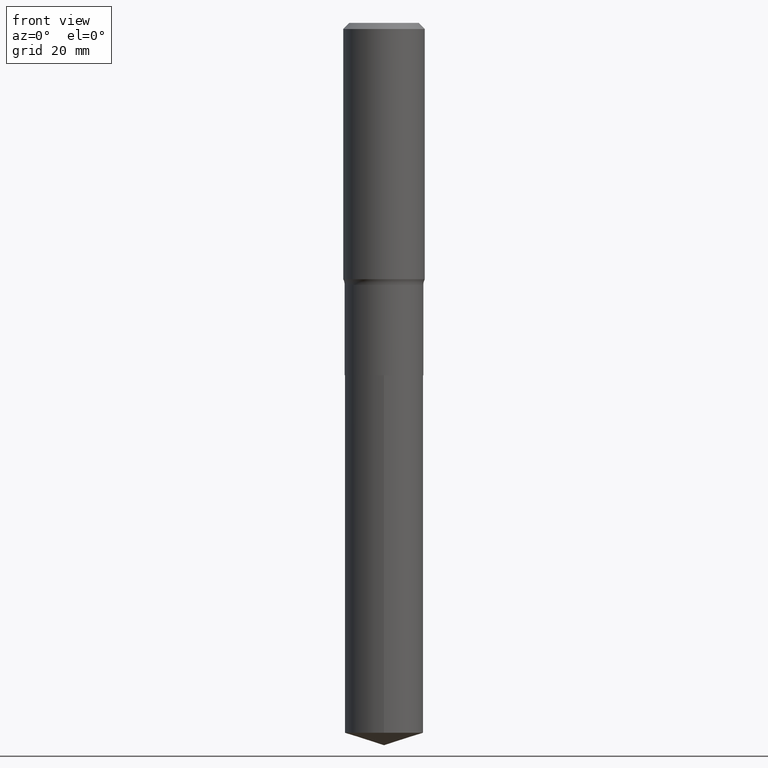
[diagram: clean part render]
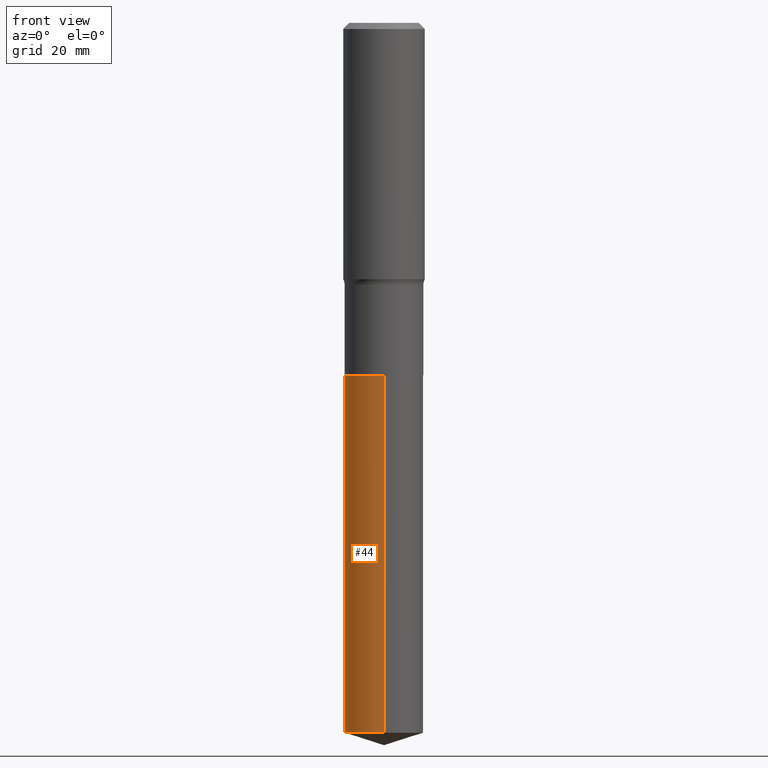
[diagram: same view with one face highlighted and labeled with its STEP entity id]
A machine part, front view. The second image highlights one B-rep face of the part: STEP entity #44.
In plain terms, the highlighted cylindrical surface (partial cylindrical patch) has radius 6.75 mm, axis along (-0, 0, 1).
Its self-contained STEP definition (entity closure, byte-faithful):
#1 = EDGE_CURVE ( 'NONE', #421, #33, #147, .T. ) ;
#3 = CARTESIAN_POINT ( 'NONE',  ( 5.824862149452375369E-29, -8.316359400990487656E-15, -2.381899999999999462 ) ) ;
#5 = CARTESIAN_POINT ( 'NONE',  ( 1.173308198626494863E-28, -1.675328935947353853E-14, -4.798109346855410351 ) ) ;
#7 = CYLINDRICAL_SURFACE ( 'NONE', #30, 0.2657499999999999862 ) ;
#30 = AXIS2_PLACEMENT_3D ( 'NONE', #3, #303, #158 ) ;
#33 = VERTEX_POINT ( 'NONE', #41 ) ;
#41 = CARTESIAN_POINT ( 'NONE',  ( -1.855722331595008201E-15, -0.2657500000000168061, -4.798109346855409463 ) ) ;
#44 = ADVANCED_FACE ( 'NONE', ( #84 ), #7, .T. ) ;
#47 = DIRECTION ( 'NONE',  ( -2.445243349671607734E-29, 3.491804205402707273E-15, 1.000000000000000000 ) ) ;
#60 = LINE ( 'NONE', #318, #193 ) ;
#74 = VERTEX_POINT ( 'NONE', #163 ) ;
#79 = VERTEX_POINT ( 'NONE', #430 ) ;
#84 = FACE_OUTER_BOUND ( 'NONE', #407, .T. ) ;
#107 = AXIS2_PLACEMENT_3D ( 'NONE', #5, #340, #492 ) ;
#138 = LINE ( 'NONE', #287, #280 ) ;
#147 = CIRCLE ( 'NONE', #107, 0.2657499999999999862 ) ;
#151 = ORIENTED_EDGE ( 'NONE', *, *, #328, .F. ) ;
#158 = DIRECTION ( 'NONE',  ( -6.982962677686266711E-15, -1.000000000000000000, 3.083930002255048040E-15 ) ) ;
#160 = EDGE_CURVE ( 'NONE', #33, #79, #60, .T. ) ;
#163 = CARTESIAN_POINT ( 'NONE',  ( 1.888267320282583686E-15, 0.2657499999999916596, -2.381900000000000350 ) ) ;
#169 = CIRCLE ( 'NONE', #468, 0.2657499999999999862 ) ;
#191 = ORIENTED_EDGE ( 'NONE', *, *, #395, .F. ) ;
#193 = VECTOR ( 'NONE', #47, 39.37007874015748143 ) ;
#220 = DIRECTION ( 'NONE',  ( -2.445243349671607734E-29, 3.491804205402706878E-15, 1.000000000000000000 ) ) ;
#257 = DIRECTION ( 'NONE',  ( -6.982962677686266711E-15, -1.000000000000000000, 3.083930002255048040E-15 ) ) ;
#262 = CARTESIAN_POINT ( 'NONE',  ( 1.888267320282583686E-15, 0.2657499999999832774, -4.798109346855411239 ) ) ;
#280 = VECTOR ( 'NONE', #483, 39.37007874015748143 ) ;
#287 = CARTESIAN_POINT ( 'NONE',  ( 1.888267320282524127E-15, 0.2657499999999916596, -2.381900000000000350 ) ) ;
#303 = DIRECTION ( 'NONE',  ( -2.445243349671607734E-29, 3.491804205402706878E-15, 1.000000000000000000 ) ) ;
#318 = CARTESIAN_POINT ( 'NONE',  ( -1.855722331595066971E-15, -0.2657500000000083129, -2.381899999999998574 ) ) ;
#328 = EDGE_CURVE ( 'NONE', #74, #79, #169, .T. ) ;
#335 = ORIENTED_EDGE ( 'NONE', *, *, #1, .T. ) ;
#340 = DIRECTION ( 'NONE',  ( -2.445243349671607734E-29, 3.491804205402706878E-15, 1.000000000000000000 ) ) ;
#342 = ORIENTED_EDGE ( 'NONE', *, *, #160, .T. ) ;
#360 = CARTESIAN_POINT ( 'NONE',  ( 5.824862149452375369E-29, -8.316359400990487656E-15, -2.381899999999999462 ) ) ;
#395 = EDGE_CURVE ( 'NONE', #421, #74, #138, .T. ) ;
#407 = EDGE_LOOP ( 'NONE', ( #191, #335, #342, #151 ) ) ;
#421 = VERTEX_POINT ( 'NONE', #262 ) ;
#430 = CARTESIAN_POINT ( 'NONE',  ( -1.855722331595066971E-15, -0.2657500000000083129, -2.381899999999998574 ) ) ;
#468 = AXIS2_PLACEMENT_3D ( 'NONE', #360, #220, #257 ) ;
#483 = DIRECTION ( 'NONE',  ( -2.445243349671607734E-29, 3.491804205402707273E-15, 1.000000000000000000 ) ) ;
#492 = DIRECTION ( 'NONE',  ( -6.982962677686266711E-15, -1.000000000000000000, 4.111906669673397387E-15 ) ) ;